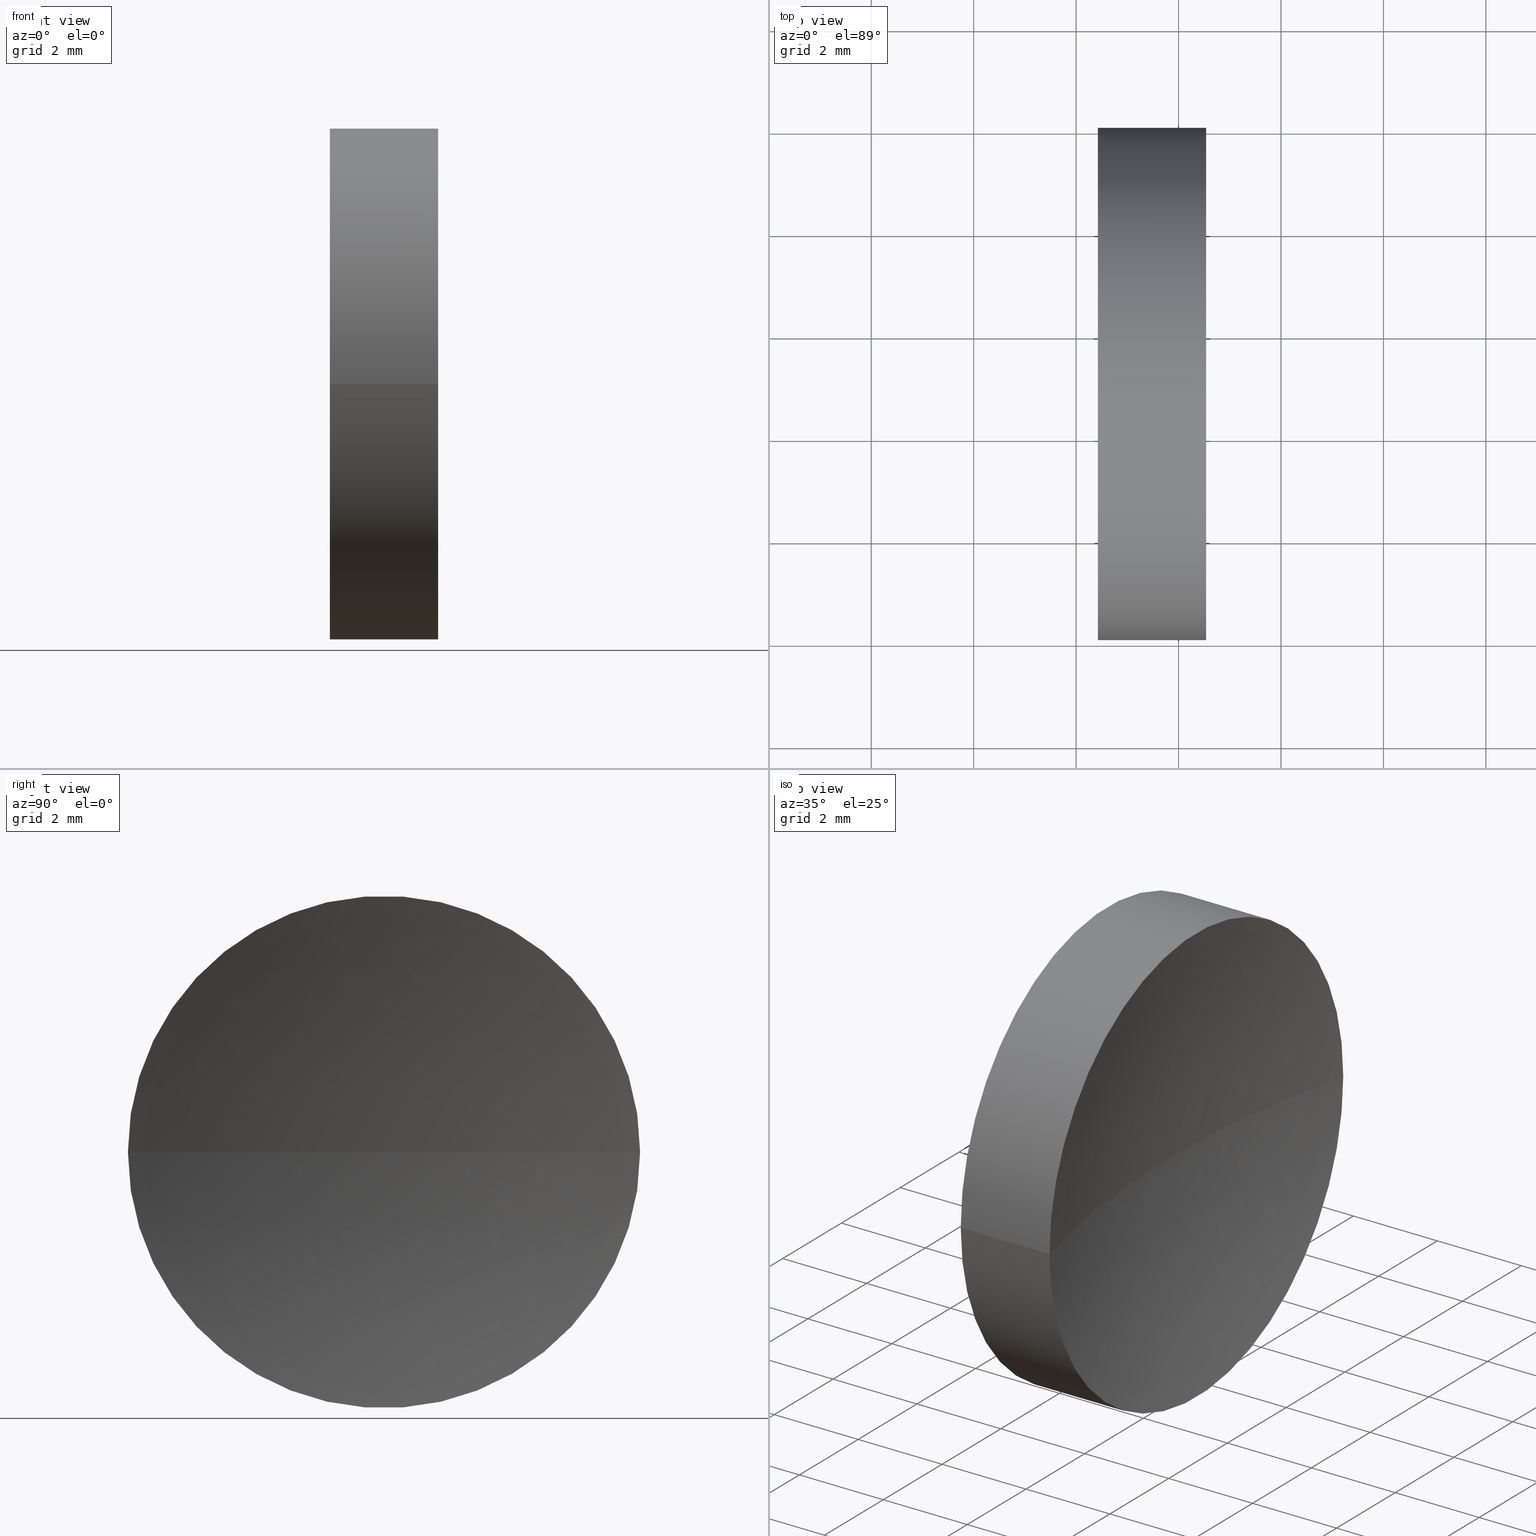
[diagram: canonical four-view strip — front | top / right | iso, engineering-drawing reading convention]
A machine part, canonical four-view strip (front | top / right | iso — engineering-drawing reading convention). The complete STEP part file that produces these views, byte-faithful:
ISO-10303-21;
HEADER;
FILE_DESCRIPTION (( 'STEP AP214' ),
    '1' );
FILE_NAME ('120135.STEP',
    '2019-06-19T06:48:13',
    ( '' ),
    ( '' ),
    'SwSTEP 2.0',
    'SolidWorks 2016',
    '' );
FILE_SCHEMA (( 'AUTOMOTIVE_DESIGN' ));
ENDSEC;

DATA;
#1 = DIRECTION ( 'NONE',  ( 3.159171411554934600E-016, 1.000000000000000000, 0.0000000000000000000 ) ) ;
#2 = DIRECTION ( 'NONE',  ( -1.000000000000000000, 3.159171411554934600E-016, -0.0000000000000000000 ) ) ;
#3 = APPLICATION_CONTEXT ( 'automotive_design' ) ;
#4 = EDGE_CURVE ( 'NONE', #61, #21, #140, .T. ) ;
#5 = CARTESIAN_POINT ( 'NONE',  ( 0.0000000000000000000, 0.0000000000000000000, 0.0000000000000000000 ) ) ;
#6 = SURFACE_STYLE_FILL_AREA ( #39 ) ;
#7 = CARTESIAN_POINT ( 'NONE',  ( 22.42423205362066000, 13.03112609140304200, 0.0000000000000000000 ) ) ;
#8 = CARTESIAN_POINT ( 'NONE',  ( 21.50597511808246100, 8.031126091403040200, 0.0000000000000000000 ) ) ;
#9 = DIRECTION ( 'NONE',  ( -1.000000000000000000, 3.159171411554934600E-016, -0.0000000000000000000 ) ) ;
#10 = AXIS2_PLACEMENT_3D ( 'NONE', #124, #32, #89 ) ;
#11 = CARTESIAN_POINT ( 'NONE',  ( 44.57423205362065500, 13.03112609140303100, 0.0000000000000000000 ) ) ;
#12 = CARTESIAN_POINT ( 'NONE',  ( 24.53870111481097600, 8.031126091403018900, -6.123233995736789000E-016 ) ) ;
#13 = SHAPE_DEFINITION_REPRESENTATION ( #58, #19 ) ;
#14 = SPHERICAL_SURFACE ( 'NONE', #125, 20.65000000000000200 ) ;
#15 = APPLICATION_PROTOCOL_DEFINITION ( 'draft international standard', 'automotive_design', 1998, #3 ) ;
#16 = ORIENTED_EDGE ( 'NONE', *, *, #64, .F. ) ;
#17 =( LENGTH_UNIT ( ) NAMED_UNIT ( * ) SI_UNIT ( .MILLI., .METRE. ) );
#18 = PRODUCT ( '120135', '120135', '', ( #57 ) ) ;
#19 = ADVANCED_BREP_SHAPE_REPRESENTATION ( '120135', ( #129, #74 ), #36 ) ;
#20 = DIRECTION ( 'NONE',  ( 0.0000000000000000000, -1.000000000000000000, 0.0000000000000000000 ) ) ;
#21 = VERTEX_POINT ( 'NONE', #157 ) ;
#22 = ORIENTED_EDGE ( 'NONE', *, *, #56, .T. ) ;
#23 = AXIS2_PLACEMENT_3D ( 'NONE', #112, #33, #20 ) ;
#24 = CARTESIAN_POINT ( 'NONE',  ( 44.57423205362065500, 13.03112609140303100, 0.0000000000000000000 ) ) ;
#25 = FACE_OUTER_BOUND ( 'NONE', #118, .T. ) ;
#26 = CARTESIAN_POINT ( 'NONE',  ( 22.42423205362066000, 13.03112609140304200, 0.0000000000000000000 ) ) ;
#27 = AXIS2_PLACEMENT_3D ( 'NONE', #142, #9, #115 ) ;
#28 = FILL_AREA_STYLE_COLOUR ( '', #94 ) ;
#29 = APPLICATION_PROTOCOL_DEFINITION ( 'draft international standard', 'automotive_design', 1998, #148 ) ;
#30 = CARTESIAN_POINT ( 'NONE',  ( 21.50597511808246100, 18.03112609140304200, 6.123233995736768300E-016 ) ) ;
#31 = CYLINDRICAL_SURFACE ( 'NONE', #72, 5.000000000000000900 ) ;
#32 = DIRECTION ( 'NONE',  ( 3.868869157118576300E-032, 1.224646799147353200E-016, -1.000000000000000000 ) ) ;
#33 = DIRECTION ( 'NONE',  ( -1.000000000000000000, 3.159171411554934600E-016, -0.0000000000000000000 ) ) ;
#34 = ADVANCED_FACE ( 'NONE', ( #25 ), #31, .T. ) ;
#35 = UNCERTAINTY_MEASURE_WITH_UNIT (LENGTH_MEASURE( 1.000000000000000100E-005 ), #131, 'distance_accuracy_value', 'NONE');
#36 =( GEOMETRIC_REPRESENTATION_CONTEXT ( 3 ) GLOBAL_UNCERTAINTY_ASSIGNED_CONTEXT ( ( #98 ) ) GLOBAL_UNIT_ASSIGNED_CONTEXT ( ( #147, #78, #67 ) ) REPRESENTATION_CONTEXT ( 'NONE', 'WORKASPACE' ) );
#37 = SURFACE_STYLE_USAGE ( .BOTH. , #63 ) ;
#38 = DIRECTION ( 'NONE',  ( 0.0000000000000000000, -1.000000000000000000, 0.0000000000000000000 ) ) ;
#39 = FILL_AREA_STYLE ('',( #117 ) ) ;
#40 = FACE_OUTER_BOUND ( 'NONE', #127, .T. ) ;
#41 = PRESENTATION_LAYER_ASSIGNMENT (  '', '', ( #128 ) ) ;
#42 = FILL_AREA_STYLE ('',( #28 ) ) ;
#43 = LINE ( 'NONE', #30, #111 ) ;
#44 = ADVANCED_FACE ( 'NONE', ( #40 ), #102, .F. ) ;
#45 = CARTESIAN_POINT ( 'NONE',  ( 24.53870111481098000, 18.03112609140306000, 0.0000000000000000000 ) ) ;
#46 = PLANE ( 'NONE',  #119 ) ;
#47 = AXIS2_PLACEMENT_3D ( 'NONE', #59, #162, #123 ) ;
#48 = EDGE_CURVE ( 'NONE', #88, #55, #138, .T. ) ;
#49 = CLOSED_SHELL ( 'NONE', ( #82, #44, #137, #34, #80 ) ) ;
#50 = ORIENTED_EDGE ( 'NONE', *, *, #91, .F. ) ;
#51 = ORIENTED_EDGE ( 'NONE', *, *, #64, .T. ) ;
#52 = DIRECTION ( 'NONE',  ( 1.000000000000000000, -3.159171411554934600E-016, 0.0000000000000000000 ) ) ;
#53 = MECHANICAL_DESIGN_GEOMETRIC_PRESENTATION_REPRESENTATION (  '', ( #151 ), #93 ) ;
#54 = ORIENTED_EDGE ( 'NONE', *, *, #153, .T. ) ;
#55 = VERTEX_POINT ( 'NONE', #45 ) ;
#56 = EDGE_CURVE ( 'NONE', #88, #21, #165, .T. ) ;
#57 = PRODUCT_CONTEXT ( 'NONE', #3, 'mechanical' ) ;
#58 = PRODUCT_DEFINITION_SHAPE ( 'NONE', 'NONE',  #71 ) ;
#59 = CARTESIAN_POINT ( 'NONE',  ( 22.42423205362066000, 13.03112609140304200, 0.0000000000000000000 ) ) ;
#60 = MECHANICAL_DESIGN_GEOMETRIC_PRESENTATION_REPRESENTATION (  '', ( #128 ), #75 ) ;
#61 = VERTEX_POINT ( 'NONE', #70 ) ;
#62 = PRESENTATION_STYLE_ASSIGNMENT (( #107 ) ) ;
#63 = SURFACE_SIDE_STYLE ('',( #6 ) ) ;
#64 = EDGE_CURVE ( 'NONE', #88, #121, #104, .T. ) ;
#65 = CARTESIAN_POINT ( 'NONE',  ( 21.50597511808246100, 13.03112609140304200, 0.0000000000000000000 ) ) ;
#66 = FACE_OUTER_BOUND ( 'NONE', #156, .T. ) ;
#67 =( NAMED_UNIT ( * ) SI_UNIT ( $, .STERADIAN. ) SOLID_ANGLE_UNIT ( ) );
#68 = DIRECTION ( 'NONE',  ( 0.0000000000000000000, 0.0000000000000000000, -1.000000000000000000 ) ) ;
#69 = PRESENTATION_STYLE_ASSIGNMENT (( #37 ) ) ;
#70 = CARTESIAN_POINT ( 'NONE',  ( 22.42423205362066000, 18.03112609140304200, 6.123233995736768300E-016 ) ) ;
#71 = PRODUCT_DEFINITION ( 'δ֪', '', #120, #132 ) ;
#72 = AXIS2_PLACEMENT_3D ( 'NONE', #65, #2, #92 ) ;
#73 = FACE_OUTER_BOUND ( 'NONE', #85, .T. ) ;
#74 = AXIS2_PLACEMENT_3D ( 'NONE', #5, #95, #135 ) ;
#75 =( GEOMETRIC_REPRESENTATION_CONTEXT ( 3 ) GLOBAL_UNCERTAINTY_ASSIGNED_CONTEXT ( ( #35 ) ) GLOBAL_UNIT_ASSIGNED_CONTEXT ( ( #131, #163, #150 ) ) REPRESENTATION_CONTEXT ( 'NONE', 'WORKASPACE' ) );
#76 = DIRECTION ( 'NONE',  ( -1.000000000000000000, 3.159171411554934600E-016, -0.0000000000000000000 ) ) ;
#77 = PRODUCT_RELATED_PRODUCT_CATEGORY ( 'part', '', ( #18 ) ) ;
#78 =( NAMED_UNIT ( * ) PLANE_ANGLE_UNIT ( ) SI_UNIT ( $, .RADIAN. ) );
#79 = ORIENTED_EDGE ( 'NONE', *, *, #48, .T. ) ;
#80 = ADVANCED_FACE ( 'NONE', ( #66 ), #46, .F. ) ;
#81 = DIRECTION ( 'NONE',  ( 3.360239178647568300E-016, 1.000000000000000000, 0.0000000000000000000 ) ) ;
#82 = ADVANCED_FACE ( 'NONE', ( #73 ), #110, .T. ) ;
#83 = AXIS2_PLACEMENT_3D ( 'NONE', #11, #130, #81 ) ;
#84 = ORIENTED_EDGE ( 'NONE', *, *, #146, .F. ) ;
#85 = EDGE_LOOP ( 'NONE', ( #79, #113, #126, #155 ) ) ;
#86 = DIRECTION ( 'NONE',  ( 0.0000000000000000000, 0.0000000000000000000, 1.000000000000000000 ) ) ;
#87 = ORIENTED_EDGE ( 'NONE', *, *, #48, .F. ) ;
#88 = VERTEX_POINT ( 'NONE', #12 ) ;
#89 = DIRECTION ( 'NONE',  ( 0.0000000000000000000, 1.000000000000000000, 1.224646799147353500E-016 ) ) ;
#90 = DIRECTION ( 'NONE',  ( 0.0000000000000000000, -1.000000000000000000, 0.0000000000000000000 ) ) ;
#91 = EDGE_CURVE ( 'NONE', #55, #121, #99, .T. ) ;
#92 = DIRECTION ( 'NONE',  ( 0.0000000000000000000, -1.000000000000000000, 0.0000000000000000000 ) ) ;
#93 =( GEOMETRIC_REPRESENTATION_CONTEXT ( 3 ) GLOBAL_UNCERTAINTY_ASSIGNED_CONTEXT ( ( #158 ) ) GLOBAL_UNIT_ASSIGNED_CONTEXT ( ( #17, #160, #96 ) ) REPRESENTATION_CONTEXT ( 'NONE', 'WORKASPACE' ) );
#94 = COLOUR_RGB ( '',1.000000000000000000, 1.000000000000000000, 1.000000000000000000 ) ;
#95 = DIRECTION ( 'NONE',  ( 0.0000000000000000000, 0.0000000000000000000, 1.000000000000000000 ) ) ;
#96 =( NAMED_UNIT ( * ) SI_UNIT ( $, .STERADIAN. ) SOLID_ANGLE_UNIT ( ) );
#97 = DIRECTION ( 'NONE',  ( -1.000000000000000000, 3.159171411554934600E-016, -0.0000000000000000000 ) ) ;
#98 = UNCERTAINTY_MEASURE_WITH_UNIT (LENGTH_MEASURE( 1.000000000000000100E-005 ), #147, 'distance_accuracy_value', 'NONE');
#99 = CIRCLE ( 'NONE', #108, 20.65000000000000200 ) ;
#100 = DIRECTION ( 'NONE',  ( -1.000000000000000000, 3.159171411554934600E-016, -0.0000000000000000000 ) ) ;
#101 = AXIS2_PLACEMENT_3D ( 'NONE', #26, #116, #38 ) ;
#102 = SPHERICAL_SURFACE ( 'NONE', #83, 20.65000000000000200 ) ;
#103 = CARTESIAN_POINT ( 'NONE',  ( 21.50597511808246100, 13.03112609140304200, 0.0000000000000000000 ) ) ;
#104 = CIRCLE ( 'NONE', #10, 20.64999999999999900 ) ;
#105 = CIRCLE ( 'NONE', #27, 5.000000000000002700 ) ;
#106 = EDGE_LOOP ( 'NONE', ( #16, #141, #152 ) ) ;
#107 = SURFACE_STYLE_USAGE ( .BOTH. , #161 ) ;
#108 = AXIS2_PLACEMENT_3D ( 'NONE', #24, #86, #154 ) ;
#109 = DIRECTION ( 'NONE',  ( 3.360239178647568300E-016, 1.000000000000000000, 0.0000000000000000000 ) ) ;
#110 = CYLINDRICAL_SURFACE ( 'NONE', #136, 5.000000000000000900 ) ;
#111 = VECTOR ( 'NONE', #97, 1000.000000000000000 ) ;
#112 = CARTESIAN_POINT ( 'NONE',  ( 24.53870111481097600, 13.03112609140304000, 0.0000000000000000000 ) ) ;
#113 = ORIENTED_EDGE ( 'NONE', *, *, #146, .T. ) ;
#114 = CIRCLE ( 'NONE', #47, 5.000000000000000900 ) ;
#115 = DIRECTION ( 'NONE',  ( 0.0000000000000000000, -1.000000000000000000, 0.0000000000000000000 ) ) ;
#116 = DIRECTION ( 'NONE',  ( -1.000000000000000000, 3.159171411554934600E-016, -0.0000000000000000000 ) ) ;
#117 = FILL_AREA_STYLE_COLOUR ( '', #143 ) ;
#118 = EDGE_LOOP ( 'NONE', ( #84, #122, #22, #145 ) ) ;
#119 = AXIS2_PLACEMENT_3D ( 'NONE', #7, #52, #1 ) ;
#120 = PRODUCT_DEFINITION_FORMATION_WITH_SPECIFIED_SOURCE ( '�κ�', '', #18, .NOT_KNOWN. ) ;
#121 = VERTEX_POINT ( 'NONE', #166 ) ;
#122 = ORIENTED_EDGE ( 'NONE', *, *, #164, .T. ) ;
#123 = DIRECTION ( 'NONE',  ( 0.0000000000000000000, -1.000000000000000000, 0.0000000000000000000 ) ) ;
#124 = CARTESIAN_POINT ( 'NONE',  ( 44.57423205362065500, 13.03112609140303100, 0.0000000000000000000 ) ) ;
#125 = AXIS2_PLACEMENT_3D ( 'NONE', #149, #68, #109 ) ;
#126 = ORIENTED_EDGE ( 'NONE', *, *, #153, .F. ) ;
#127 = EDGE_LOOP ( 'NONE', ( #87, #51, #50 ) ) ;
#128 = STYLED_ITEM ( 'NONE', ( #69 ), #129 ) ;
#129 = MANIFOLD_SOLID_BREP ( '��ת1', #49 ) ;
#130 = DIRECTION ( 'NONE',  ( 0.0000000000000000000, 0.0000000000000000000, -1.000000000000000000 ) ) ;
#131 =( LENGTH_UNIT ( ) NAMED_UNIT ( * ) SI_UNIT ( .MILLI., .METRE. ) );
#132 = PRODUCT_DEFINITION_CONTEXT ( 'detailed design', #148, 'design' ) ;
#133 = VECTOR ( 'NONE', #100, 1000.000000000000000 ) ;
#134 = SURFACE_STYLE_FILL_AREA ( #42 ) ;
#135 = DIRECTION ( 'NONE',  ( 1.000000000000000000, 0.0000000000000000000, 0.0000000000000000000 ) ) ;
#136 = AXIS2_PLACEMENT_3D ( 'NONE', #103, #76, #90 ) ;
#137 = ADVANCED_FACE ( 'NONE', ( #139 ), #14, .F. ) ;
#138 = CIRCLE ( 'NONE', #23, 5.000000000000002700 ) ;
#139 = FACE_OUTER_BOUND ( 'NONE', #106, .T. ) ;
#140 = CIRCLE ( 'NONE', #101, 5.000000000000000900 ) ;
#141 = ORIENTED_EDGE ( 'NONE', *, *, #164, .F. ) ;
#142 = CARTESIAN_POINT ( 'NONE',  ( 24.53870111481097600, 13.03112609140304000, 0.0000000000000000000 ) ) ;
#143 = COLOUR_RGB ( '',1.000000000000000000, 1.000000000000000000, 1.000000000000000000 ) ;
#144 = PRESENTATION_LAYER_ASSIGNMENT (  '', '', ( #151 ) ) ;
#145 = ORIENTED_EDGE ( 'NONE', *, *, #4, .F. ) ;
#146 = EDGE_CURVE ( 'NONE', #55, #61, #43, .T. ) ;
#147 =( LENGTH_UNIT ( ) NAMED_UNIT ( * ) SI_UNIT ( .MILLI., .METRE. ) );
#148 = APPLICATION_CONTEXT ( 'automotive_design' ) ;
#149 = CARTESIAN_POINT ( 'NONE',  ( 44.57423205362065500, 13.03112609140303100, 0.0000000000000000000 ) ) ;
#150 =( NAMED_UNIT ( * ) SI_UNIT ( $, .STERADIAN. ) SOLID_ANGLE_UNIT ( ) );
#151 = STYLED_ITEM ( 'NONE', ( #62 ), #19 ) ;
#152 = ORIENTED_EDGE ( 'NONE', *, *, #91, .T. ) ;
#153 = EDGE_CURVE ( 'NONE', #21, #61, #114, .T. ) ;
#154 = DIRECTION ( 'NONE',  ( 1.000000000000000000, 0.0000000000000000000, 0.0000000000000000000 ) ) ;
#155 = ORIENTED_EDGE ( 'NONE', *, *, #56, .F. ) ;
#156 = EDGE_LOOP ( 'NONE', ( #54, #159 ) ) ;
#157 = CARTESIAN_POINT ( 'NONE',  ( 22.42423205362066000, 8.031126091403040200, 0.0000000000000000000 ) ) ;
#158 = UNCERTAINTY_MEASURE_WITH_UNIT (LENGTH_MEASURE( 1.000000000000000100E-005 ), #17, 'distance_accuracy_value', 'NONE');
#159 = ORIENTED_EDGE ( 'NONE', *, *, #4, .T. ) ;
#160 =( NAMED_UNIT ( * ) PLANE_ANGLE_UNIT ( ) SI_UNIT ( $, .RADIAN. ) );
#161 = SURFACE_SIDE_STYLE ('',( #134 ) ) ;
#162 = DIRECTION ( 'NONE',  ( -1.000000000000000000, 3.159171411554934600E-016, -0.0000000000000000000 ) ) ;
#163 =( NAMED_UNIT ( * ) PLANE_ANGLE_UNIT ( ) SI_UNIT ( $, .RADIAN. ) );
#164 = EDGE_CURVE ( 'NONE', #55, #88, #105, .T. ) ;
#165 = LINE ( 'NONE', #8, #133 ) ;
#166 = CARTESIAN_POINT ( 'NONE',  ( 23.92423205362065300, 13.03112609140303800, 0.0000000000000000000 ) ) ;
ENDSEC;
END-ISO-10303-21;
